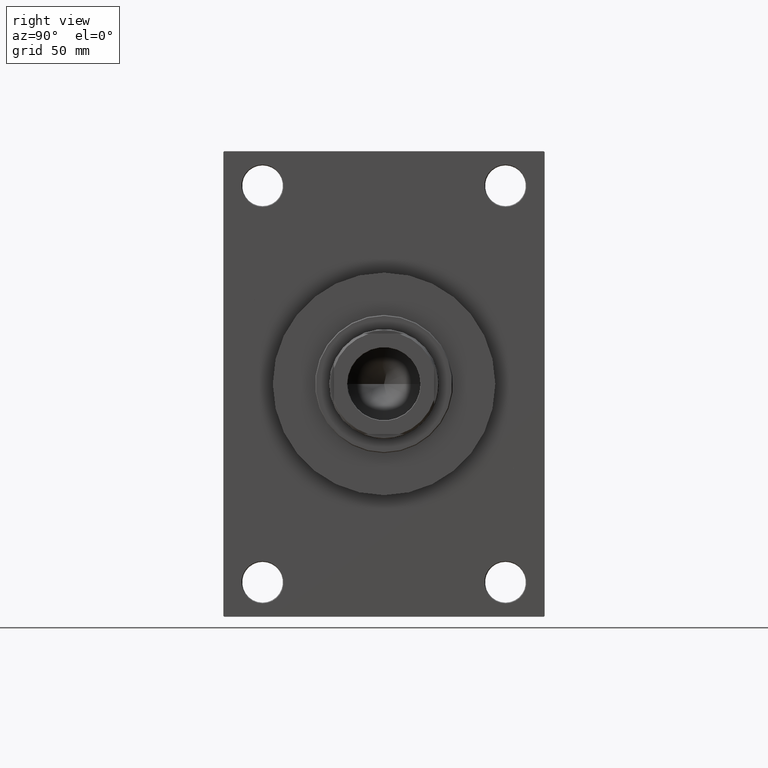
[diagram: clean part render]
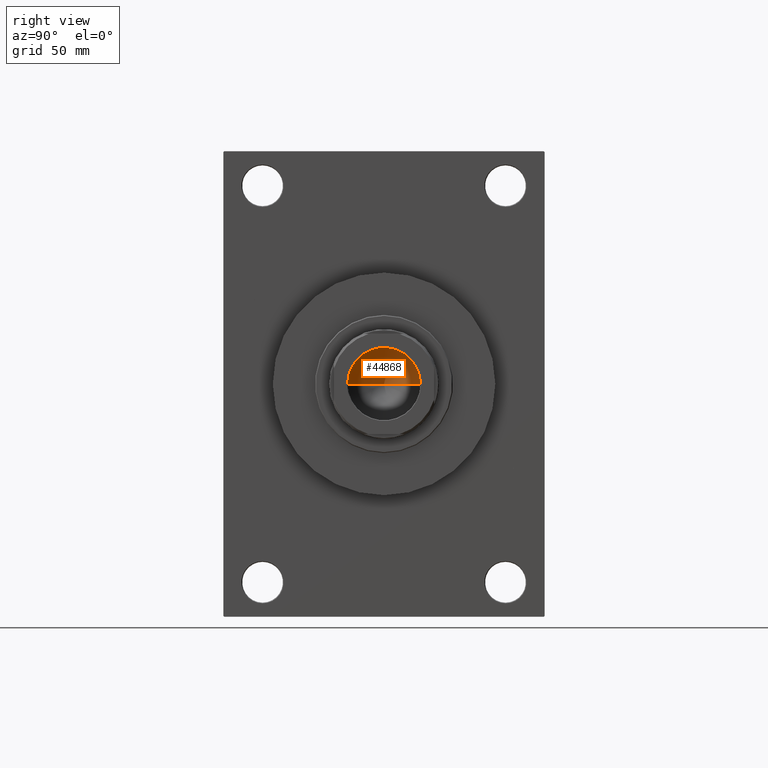
[diagram: same view with one face highlighted and labeled with its STEP entity id]
A machine part, right view. The second image highlights one B-rep face of the part: STEP entity #44868.
In plain terms, the highlighted conical surface has half-angle 59 deg.
Its self-contained STEP definition (entity closure, byte-faithful):
#880 = CONICAL_SURFACE ( 'NONE', #27844, 23.24999999999998579, 1.029744258676653867 ) ;
#1699 = ORIENTED_EDGE ( 'NONE', *, *, #27227, .T. ) ;
#5535 = ORIENTED_EDGE ( 'NONE', *, *, #43274, .T. ) ;
#5736 = LINE ( 'NONE', #19746, #40095 ) ;
#10858 = CARTESIAN_POINT ( 'NONE',  ( 0.000000000000000000, 0.000000000000000000, 136.9999999999999716 ) ) ;
#13306 = ORIENTED_EDGE ( 'NONE', *, *, #47464, .F. ) ;
#13526 = CIRCLE ( 'NONE', #42004, 23.24999999999998579 ) ;
#14092 = DIRECTION ( 'NONE',  ( -0.000000000000000000, -0.000000000000000000, 1.000000000000000000 ) ) ;
#17041 = VECTOR ( 'NONE', #33931, 1000.000000000000000 ) ;
#19746 = CARTESIAN_POINT ( 'NONE',  ( -23.24999999999998579, 2.847303808017594561E-15, 136.9999999999999716 ) ) ;
#21846 = EDGE_LOOP ( 'NONE', ( #13306, #5535, #1699 ) ) ;
#24861 = VERTEX_POINT ( 'NONE', #28546 ) ;
#25565 = DIRECTION ( 'NONE',  ( -0.000000000000000000, -0.000000000000000000, 1.000000000000000000 ) ) ;
#25796 = VERTEX_POINT ( 'NONE', #35303 ) ;
#27227 = EDGE_CURVE ( 'NONE', #24861, #46965, #13526, .T. ) ;
#27844 = AXIS2_PLACEMENT_3D ( 'NONE', #32421, #14092, #43482 ) ;
#28546 = CARTESIAN_POINT ( 'NONE',  ( -23.24999999999998579, 2.847303808017594561E-15, 136.9999999999999716 ) ) ;
#30087 = LINE ( 'NONE', #44990, #17041 ) ;
#31309 = DIRECTION ( 'NONE',  ( -0.8571673007021120005, 1.049727191138618326E-16, 0.5150380749100547106 ) ) ;
#32421 = CARTESIAN_POINT ( 'NONE',  ( 0.000000000000000000, 0.000000000000000000, 136.9999999999999716 ) ) ;
#33931 = DIRECTION ( 'NONE',  ( 0.8571673007021120005, 0.000000000000000000, 0.5150380749100547106 ) ) ;
#35303 = CARTESIAN_POINT ( 'NONE',  ( -2.017796283410109980E-14, 0.000000000000000000, 123.0299906076092071 ) ) ;
#40095 = VECTOR ( 'NONE', #31309, 1000.000000000000000 ) ;
#40255 = DIRECTION ( 'NONE',  ( 1.000000000000000000, 0.000000000000000000, 0.000000000000000000 ) ) ;
#40261 = CARTESIAN_POINT ( 'NONE',  ( 23.24999999999998579, 0.000000000000000000, 136.9999999999999716 ) ) ;
#42004 = AXIS2_PLACEMENT_3D ( 'NONE', #10858, #25565, #40255 ) ;
#43274 = EDGE_CURVE ( 'NONE', #25796, #24861, #5736, .T. ) ;
#43482 = DIRECTION ( 'NONE',  ( 1.000000000000000000, 0.000000000000000000, 0.000000000000000000 ) ) ;
#44868 = ADVANCED_FACE ( 'NONE', ( #46627 ), #880, .F. ) ;
#44990 = CARTESIAN_POINT ( 'NONE',  ( 23.24999999999998579, 0.000000000000000000, 136.9999999999999716 ) ) ;
#46627 = FACE_OUTER_BOUND ( 'NONE', #21846, .T. ) ;
#46965 = VERTEX_POINT ( 'NONE', #40261 ) ;
#47464 = EDGE_CURVE ( 'NONE', #25796, #46965, #30087, .T. ) ;